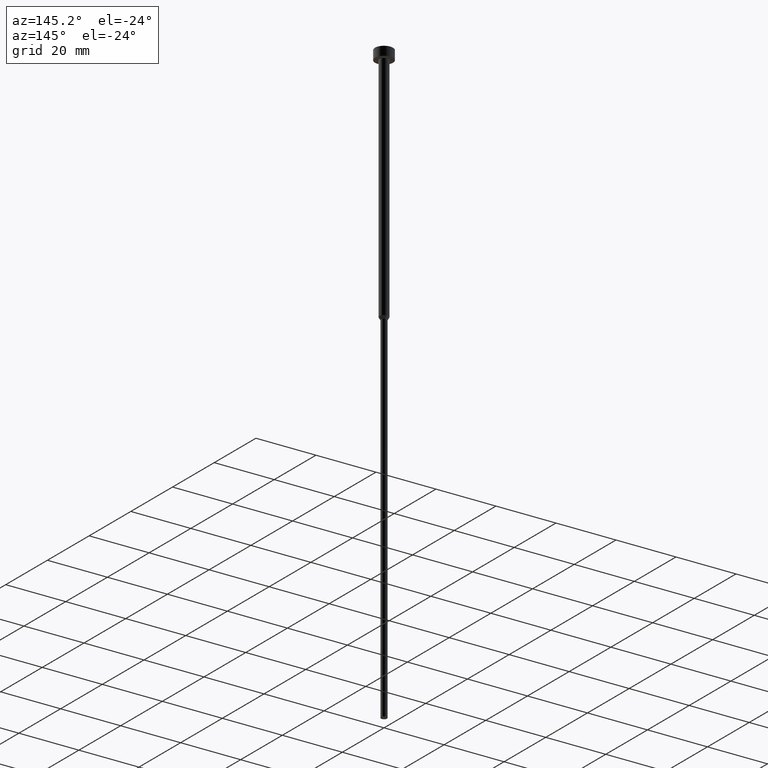
[diagram: clean part render]
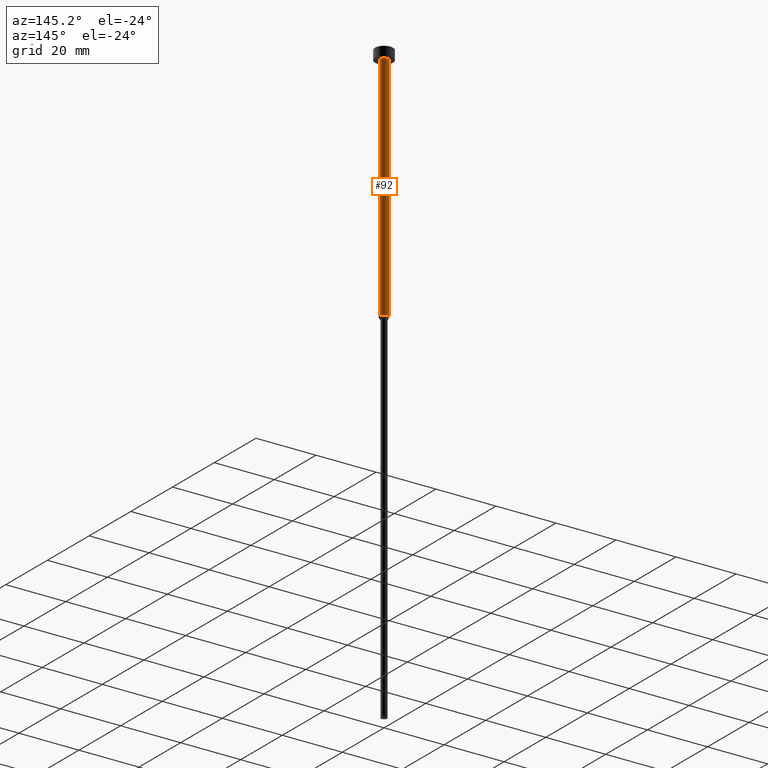
[diagram: same view with one face highlighted and labeled with its STEP entity id]
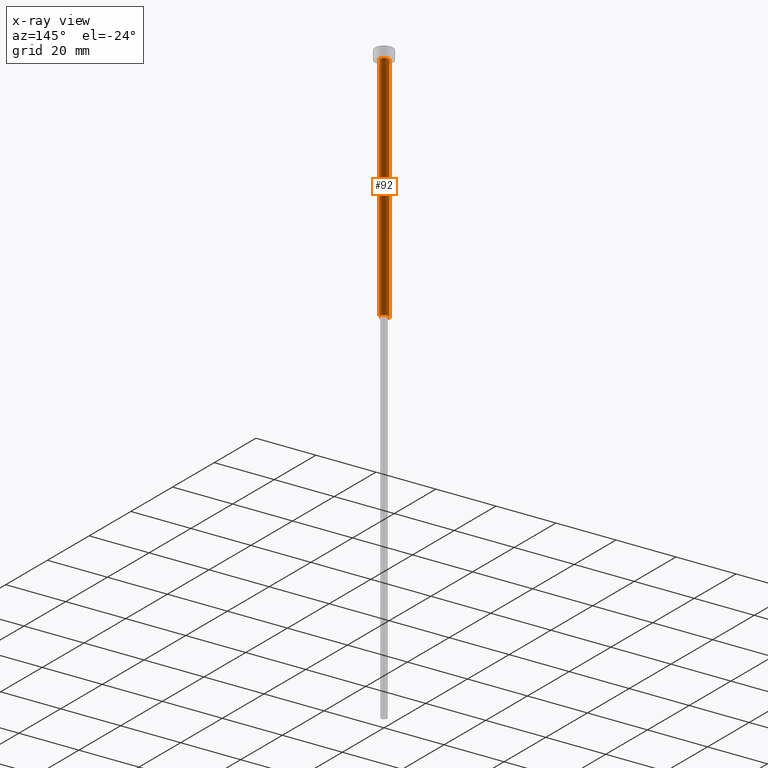
[diagram: x-ray of the same camera — body ghosted, the highlighted face saturated]
A machine part, auxiliary view. The second image highlights one B-rep face of the part: STEP entity #92.
The next image is the same camera in x-ray: the body ghosted, the highlighted face saturated — about 0% of this face is hidden behind the body in this view.
In plain terms, the highlighted cylindrical surface (edge-blend (fillet) strip) has radius 1.5 mm, axis along (-0, -0, 1).
Its self-contained STEP definition (entity closure, byte-faithful):
#6 = VERTEX_POINT ( 'NONE', #198 ) ;
#11 = CIRCLE ( 'NONE', #229, 1.500000000000000000 ) ;
#40 = FACE_OUTER_BOUND ( 'NONE', #231, .T. ) ;
#57 = VERTEX_POINT ( 'NONE', #274 ) ;
#73 = ORIENTED_EDGE ( 'NONE', *, *, #181, .T. ) ;
#91 = VECTOR ( 'NONE', #178, 1000.000000000000000 ) ;
#92 = ADVANCED_FACE ( 'NONE', ( #40 ), #254, .T. ) ;
#96 = CIRCLE ( 'NONE', #304, 1.500000000000000000 ) ;
#99 = CARTESIAN_POINT ( 'NONE',  ( 0.000000000000000000, 0.000000000000000000, -80.00000000000000000 ) ) ;
#108 = DIRECTION ( 'NONE',  ( -0.000000000000000000, -0.000000000000000000, 1.000000000000000000 ) ) ;
#116 = CARTESIAN_POINT ( 'NONE',  ( 0.000000000000000000, 0.000000000000000000, 0.000000000000000000 ) ) ;
#170 = ORIENTED_EDGE ( 'NONE', *, *, #299, .T. ) ;
#178 = DIRECTION ( 'NONE',  ( -0.000000000000000000, -0.000000000000000000, 1.000000000000000000 ) ) ;
#181 = EDGE_CURVE ( 'NONE', #6, #296, #96, .T. ) ;
#185 = AXIS2_PLACEMENT_3D ( 'NONE', #116, #205, #281 ) ;
#188 = DIRECTION ( 'NONE',  ( 1.000000000000000000, 0.000000000000000000, 0.000000000000000000 ) ) ;
#192 = CARTESIAN_POINT ( 'NONE',  ( 0.000000000000000000, 0.000000000000000000, -3.000000000000000888 ) ) ;
#198 = CARTESIAN_POINT ( 'NONE',  ( 1.500000000000000000, 0.000000000000000000, -80.00000000000000000 ) ) ;
#205 = DIRECTION ( 'NONE',  ( -0.000000000000000000, -0.000000000000000000, 1.000000000000000000 ) ) ;
#223 = CARTESIAN_POINT ( 'NONE',  ( 1.500000000000000000, 0.000000000000000000, 0.000000000000000000 ) ) ;
#225 = DIRECTION ( 'NONE',  ( 1.000000000000000000, 0.000000000000000000, 0.000000000000000000 ) ) ;
#227 = EDGE_CURVE ( 'NONE', #6, #263, #280, .T. ) ;
#229 = AXIS2_PLACEMENT_3D ( 'NONE', #192, #108, #225 ) ;
#231 = EDGE_LOOP ( 'NONE', ( #73, #170, #243, #234 ) ) ;
#234 = ORIENTED_EDGE ( 'NONE', *, *, #227, .F. ) ;
#237 = LINE ( 'NONE', #315, #91 ) ;
#243 = ORIENTED_EDGE ( 'NONE', *, *, #272, .F. ) ;
#254 = CYLINDRICAL_SURFACE ( 'NONE', #185, 1.500000000000000000 ) ;
#255 = DIRECTION ( 'NONE',  ( -0.000000000000000000, -0.000000000000000000, 1.000000000000000000 ) ) ;
#259 = VECTOR ( 'NONE', #255, 1000.000000000000000 ) ;
#263 = VERTEX_POINT ( 'NONE', #347 ) ;
#264 = CARTESIAN_POINT ( 'NONE',  ( -1.500000000000000000, 1.836970198721029934E-16, -80.00000000000000000 ) ) ;
#272 = EDGE_CURVE ( 'NONE', #263, #57, #11, .T. ) ;
#274 = CARTESIAN_POINT ( 'NONE',  ( -1.500000000000000000, 1.836970198721029934E-16, -3.000000000000000888 ) ) ;
#280 = LINE ( 'NONE', #223, #259 ) ;
#281 = DIRECTION ( 'NONE',  ( 1.000000000000000000, 0.000000000000000000, 0.000000000000000000 ) ) ;
#296 = VERTEX_POINT ( 'NONE', #264 ) ;
#299 = EDGE_CURVE ( 'NONE', #296, #57, #237, .T. ) ;
#304 = AXIS2_PLACEMENT_3D ( 'NONE', #99, #308, #188 ) ;
#308 = DIRECTION ( 'NONE',  ( -0.000000000000000000, -0.000000000000000000, 1.000000000000000000 ) ) ;
#315 = CARTESIAN_POINT ( 'NONE',  ( -1.500000000000000000, 1.836970198721029934E-16, 0.000000000000000000 ) ) ;
#347 = CARTESIAN_POINT ( 'NONE',  ( 1.500000000000000000, 0.000000000000000000, -3.000000000000000888 ) ) ;